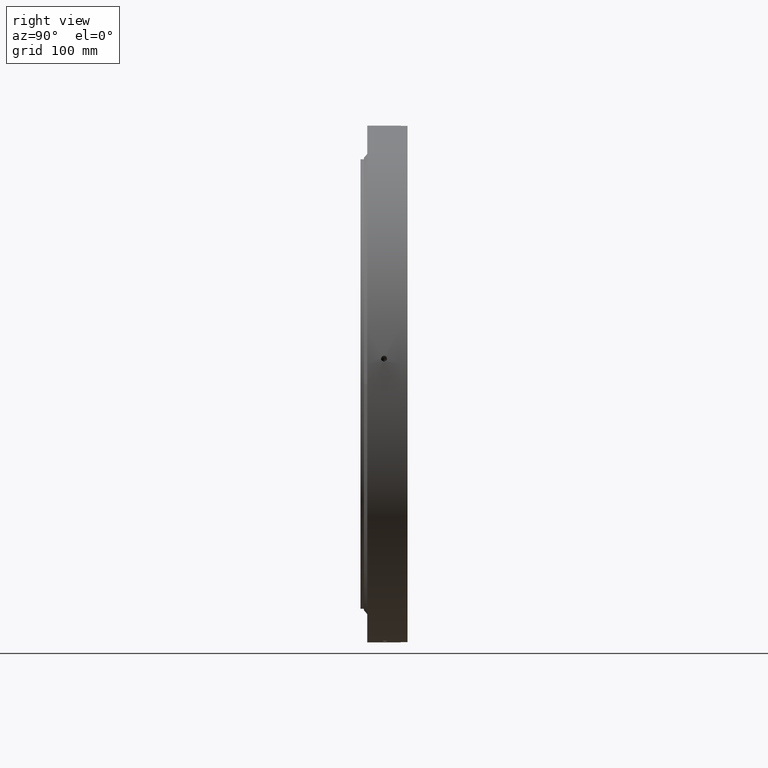
[diagram: clean part render]
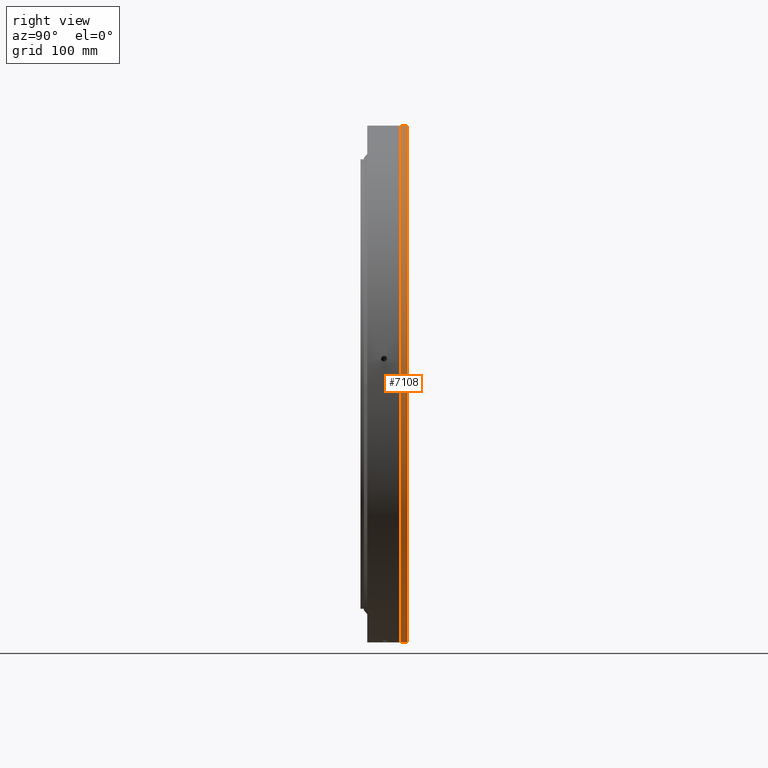
[diagram: same view with one face highlighted and labeled with its STEP entity id]
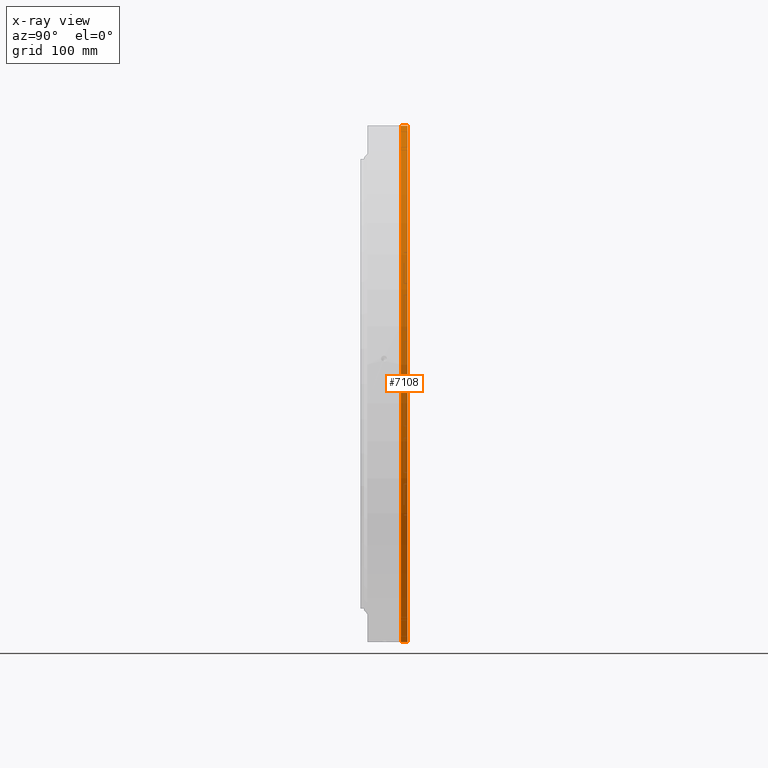
[diagram: x-ray of the same camera — body ghosted, the highlighted face saturated]
A machine part, right view. The second image highlights one B-rep face of the part: STEP entity #7108.
The next image is the same camera in x-ray: the body ghosted, the highlighted face saturated — about 0% of this face is hidden behind the body in this view.
In plain terms, the highlighted cylindrical surface (partial cylindrical patch) has radius 385 mm, axis along (0, -1, -0).
Its self-contained STEP definition (entity closure, byte-faithful):
#223 = CYLINDRICAL_SURFACE ( 'NONE', #25268, 385.0000000000000000 ) ;
#351 = FACE_OUTER_BOUND ( 'NONE', #7938, .T. ) ;
#1918 = AXIS2_PLACEMENT_3D ( 'NONE', #15664, #4199, #10107 ) ;
#2647 = ORIENTED_EDGE ( 'NONE', *, *, #4215, .F. ) ;
#3280 = AXIS2_PLACEMENT_3D ( 'NONE', #23575, #16074, #18110 ) ;
#4199 = DIRECTION ( 'NONE',  ( 1.173697223544192200E-016, -1.000000000000000000, -8.822830751849692900E-017 ) ) ;
#4215 = EDGE_CURVE ( 'NONE', #9983, #16836, #19853, .T. ) ;
#7108 = ADVANCED_FACE ( 'NONE', ( #351 ), #223, .T. ) ;
#7341 = CARTESIAN_POINT ( 'NONE',  ( 1.726385294162958600E-014, 35.00000000000002800, 385.0000000000000000 ) ) ;
#7938 = EDGE_LOOP ( 'NONE', ( #23837, #25201, #26473, #2647 ) ) ;
#9983 = VERTEX_POINT ( 'NONE', #19432 ) ;
#10107 = DIRECTION ( 'NONE',  ( 5.551115123125783900E-017, -9.011550524554842000E-017, 1.000000000000000000 ) ) ;
#10337 = VERTEX_POINT ( 'NONE', #7341 ) ;
#11904 = CARTESIAN_POINT ( 'NONE',  ( 1.843755016517378300E-014, 25.00000000000002800, 385.0000000000000000 ) ) ;
#12304 = CARTESIAN_POINT ( 'NONE',  ( -7.204178666183995700E-014, 35.00000000000005700, -385.0000000000000000 ) ) ;
#12578 = VECTOR ( 'NONE', #24027, 1000.000000000000000 ) ;
#12599 = LINE ( 'NONE', #26031, #12578 ) ;
#15450 = VECTOR ( 'NONE', #24877, 1000.000000000000000 ) ;
#15664 = CARTESIAN_POINT ( 'NONE',  ( -2.934243058860487600E-015, 25.00000000000006400, -1.050584358697194100E-015 ) ) ;
#15678 = LINE ( 'NONE', #24221, #15450 ) ;
#16074 = DIRECTION ( 'NONE',  ( -1.173697223544192200E-016, 1.000000000000000000, 3.494217355385783800E-017 ) ) ;
#16762 = EDGE_CURVE ( 'NONE', #10337, #22999, #18402, .T. ) ;
#16836 = VERTEX_POINT ( 'NONE', #11904 ) ;
#18110 = DIRECTION ( 'NONE',  ( 5.551115123125782700E-017, -3.604620209821936800E-017, 1.000000000000000000 ) ) ;
#18402 = CIRCLE ( 'NONE', #3280, 385.0000000000000000 ) ;
#19432 = CARTESIAN_POINT ( 'NONE',  ( -7.204178666183995700E-014, 25.00000000000009900, -385.0000000000000000 ) ) ;
#19853 = CIRCLE ( 'NONE', #1918, 385.0000000000000000 ) ;
#20095 = DIRECTION ( 'NONE',  ( 5.551115123125783900E-017, -9.011550524554842000E-017, 1.000000000000000000 ) ) ;
#20130 = CARTESIAN_POINT ( 'NONE',  ( 7.172411751150241800E-015, -61.10955710955709500, -8.647884843640776400E-015 ) ) ;
#20443 = DIRECTION ( 'NONE',  ( 1.173697223544192200E-016, -1.000000000000000000, -8.822830751849692900E-017 ) ) ;
#21636 = EDGE_CURVE ( 'NONE', #22999, #9983, #15678, .T. ) ;
#22201 = EDGE_CURVE ( 'NONE', #10337, #16836, #12599, .T. ) ;
#22999 = VERTEX_POINT ( 'NONE', #12304 ) ;
#23575 = CARTESIAN_POINT ( 'NONE',  ( -4.107940282404677800E-015, 35.00000000000004300, -1.683012835122259200E-016 ) ) ;
#23837 = ORIENTED_EDGE ( 'NONE', *, *, #21636, .F. ) ;
#24027 = DIRECTION ( 'NONE',  ( 1.173697223544192200E-016, -1.000000000000000000, -8.822830751849692900E-017 ) ) ;
#24221 = CARTESIAN_POINT ( 'NONE',  ( -6.134828324005712500E-014, -61.10955710955705900, -385.0000000000000000 ) ) ;
#24877 = DIRECTION ( 'NONE',  ( 1.173697223544192200E-016, -1.000000000000000000, -8.822830751849692900E-017 ) ) ;
#25201 = ORIENTED_EDGE ( 'NONE', *, *, #16762, .F. ) ;
#25268 = AXIS2_PLACEMENT_3D ( 'NONE', #20130, #20443, #20095 ) ;
#26031 = CARTESIAN_POINT ( 'NONE',  ( 2.854420497518451000E-014, -61.10955710955713000, 385.0000000000000000 ) ) ;
#26473 = ORIENTED_EDGE ( 'NONE', *, *, #22201, .T. ) ;